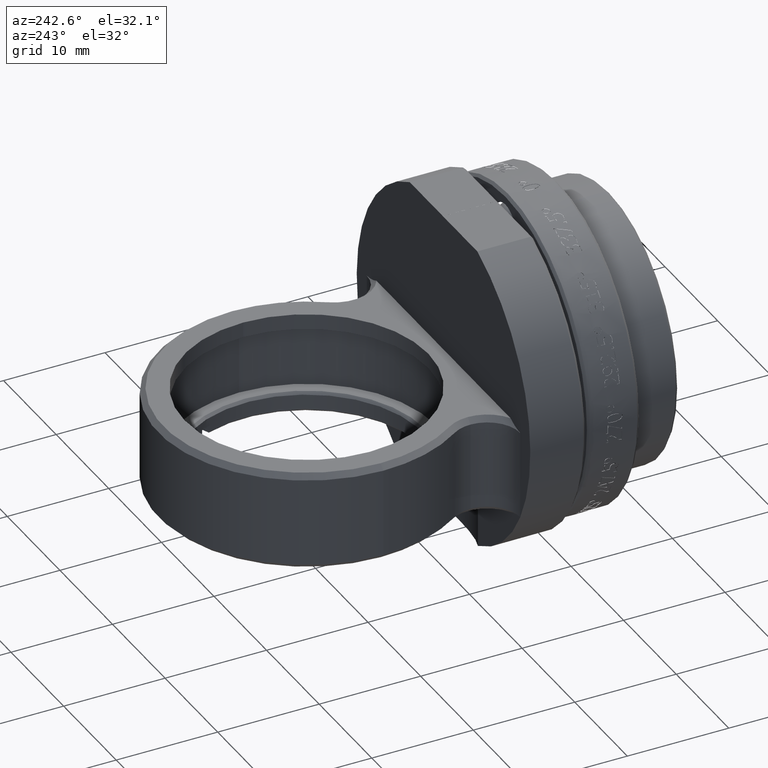
[diagram: clean part render]
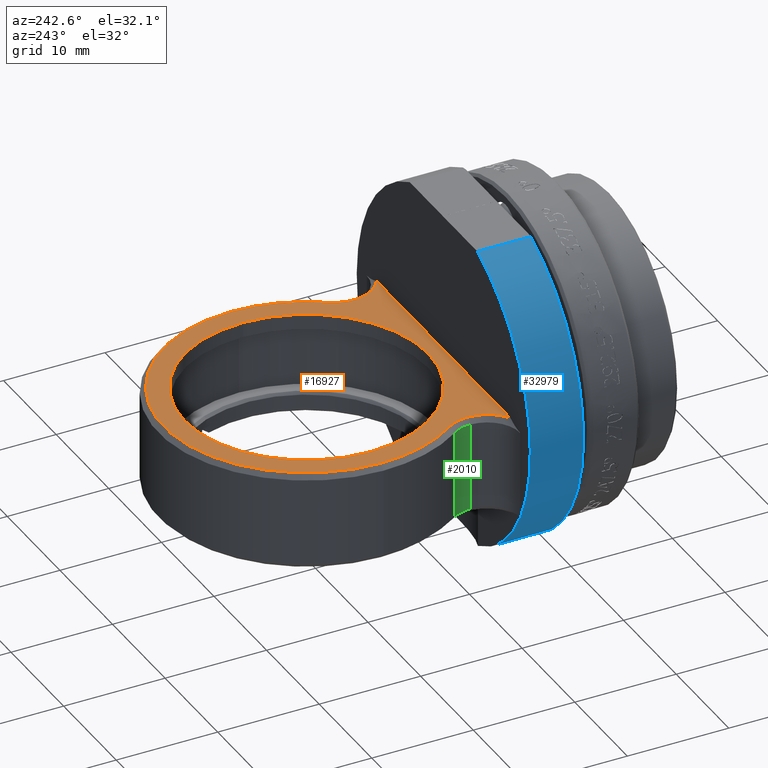
[diagram: same view with three faces highlighted in distinct colors, each labeled with its STEP entity id]
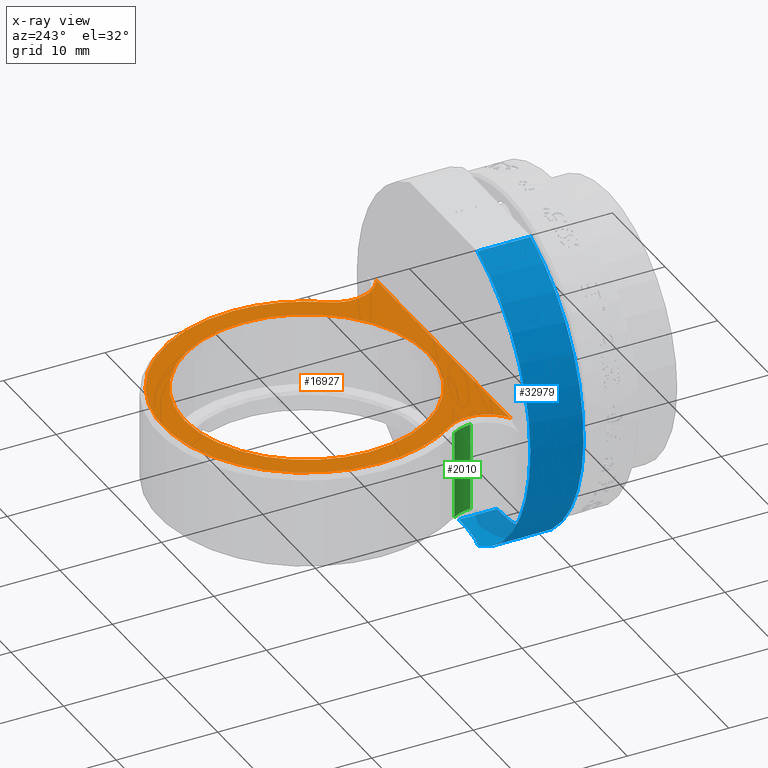
[diagram: x-ray of the same camera — body ghosted, the three highlighted faces saturated]
A machine part, auxiliary view with three faces highlighted in distinct colors.
The next image is the same camera in x-ray (body ghosted, the three faces saturated) — at least one of them is partly hidden behind the body in this view.
Their STEP definitions:

[orange] entity #16927 — the highlighted planar face has unit normal (0, 0, -1).
#651 = DIRECTION ( 'NONE',  ( -1.000000000000000000, 0.000000000000000000, 0.000000000000000000 ) ) ;
#1013 = CIRCLE ( 'NONE', #7799, 14.10000000000000142 ) ;
#1031 = EDGE_CURVE ( 'NONE', #15517, #8872, #47761, .T. ) ;
#1203 = CARTESIAN_POINT ( 'NONE',  ( -14.60000000000010445, 0.6241143853352292270, 1.499999999999850342 ) ) ;
#1524 = EDGE_CURVE ( 'NONE', #2351, #33673, #7036, .T. ) ;
#2351 = VERTEX_POINT ( 'NONE', #21173 ) ;
#2473 = PLANE ( 'NONE',  #35045 ) ;
#2997 = FACE_OUTER_BOUND ( 'NONE', #36812, .T. ) ;
#3442 = CIRCLE ( 'NONE', #37344, 3.742152537547152935 ) ;
#3496 = ORIENTED_EDGE ( 'NONE', *, *, #7613, .F. ) ;
#3506 = CARTESIAN_POINT ( 'NONE',  ( 12.73126980611230863, -2.618038152211925151, 1.499999999999848344 ) ) ;
#3992 = CARTESIAN_POINT ( 'NONE',  ( -1.041432260998257894E-13, 10.87996184778807063, 1.499999999999850342 ) ) ;
#4971 = LINE ( 'NONE', #41067, #44952 ) ;
#5699 = CIRCLE ( 'NONE', #52393, 12.00000000000000178 ) ;
#6666 = DIRECTION ( 'NONE',  ( -0.000000000000000000, -0.000000000000000000, 1.000000000000000000 ) ) ;
#7036 = CIRCLE ( 'NONE', #25998, 3.742152537547152935 ) ;
#7613 = EDGE_CURVE ( 'NONE', #44870, #48176, #14270, .T. ) ;
#7799 = AXIS2_PLACEMENT_3D ( 'NONE', #20064, #48212, #21354 ) ;
#8872 = VERTEX_POINT ( 'NONE', #19913 ) ;
#8996 = EDGE_CURVE ( 'NONE', #16036, #18588, #28646, .T. ) ;
#9658 = ORIENTED_EDGE ( 'NONE', *, *, #1031, .T. ) ;
#10643 = CARTESIAN_POINT ( 'NONE',  ( -1.041432260998257894E-13, 10.87996184778807063, 1.499999999999851674 ) ) ;
#12560 = EDGE_CURVE ( 'NONE', #8872, #16036, #1013, .T. ) ;
#12949 = CARTESIAN_POINT ( 'NONE',  ( 14.09999999999989662, 10.87996184778807240, 1.499999999999850342 ) ) ;
#14270 = CIRCLE ( 'NONE', #22739, 12.00000000000000178 ) ;
#15067 = AXIS2_PLACEMENT_3D ( 'NONE', #3992, #16181, #32137 ) ;
#15070 = AXIS2_PLACEMENT_3D ( 'NONE', #47885, #52412, #35952 ) ;
#15517 = VERTEX_POINT ( 'NONE', #3506 ) ;
#16036 = VERTEX_POINT ( 'NONE', #12949 ) ;
#16181 = DIRECTION ( 'NONE',  ( -0.000000000000000000, -0.000000000000000000, 1.000000000000000000 ) ) ;
#16755 = CIRCLE ( 'NONE', #15070, 14.10000000000000142 ) ;
#16927 = ADVANCED_FACE ( 'NONE', ( #26363, #2997 ), #2473, .F. ) ;
#17447 = EDGE_CURVE ( 'NONE', #50391, #2351, #3442, .T. ) ;
#18588 = VERTEX_POINT ( 'NONE', #24861 ) ;
#18632 = CARTESIAN_POINT ( 'NONE',  ( -1.041432260998257894E-13, 10.87996184778807063, 1.499999999999850342 ) ) ;
#19747 = EDGE_CURVE ( 'NONE', #33673, #15517, #4971, .T. ) ;
#19913 = CARTESIAN_POINT ( 'NONE',  ( 11.53784553555322923, 2.775141035597830985, 1.499999999999850342 ) ) ;
#20064 = CARTESIAN_POINT ( 'NONE',  ( -1.041432260998257894E-13, 10.87996184778807063, 1.499999999999850342 ) ) ;
#20799 = DIRECTION ( 'NONE',  ( -1.000000000000000000, 0.000000000000000000, 0.000000000000000000 ) ) ;
#21173 = CARTESIAN_POINT ( 'NONE',  ( -10.85784746245295196, 0.6241143853352292270, 1.499999999999850342 ) ) ;
#21354 = DIRECTION ( 'NONE',  ( -1.000000000000000000, 0.000000000000000000, 0.000000000000000000 ) ) ;
#22639 = ORIENTED_EDGE ( 'NONE', *, *, #12560, .T. ) ;
#22739 = AXIS2_PLACEMENT_3D ( 'NONE', #29573, #30079, #651 ) ;
#24313 = ORIENTED_EDGE ( 'NONE', *, *, #25833, .F. ) ;
#24861 = CARTESIAN_POINT ( 'NONE',  ( -14.10000000000010623, 10.87996184778807063, 1.499999999999850342 ) ) ;
#25833 = EDGE_CURVE ( 'NONE', #48176, #44870, #5699, .T. ) ;
#25878 = DIRECTION ( 'NONE',  ( -1.000000000000000000, 0.000000000000000000, 0.000000000000000000 ) ) ;
#25998 = AXIS2_PLACEMENT_3D ( 'NONE', #1203, #26140, #25878 ) ;
#26140 = DIRECTION ( 'NONE',  ( 0.000000000000000000, 0.000000000000000000, -1.000000000000000000 ) ) ;
#26363 = FACE_BOUND ( 'NONE', #38813, .T. ) ;
#28646 = CIRCLE ( 'NONE', #15067, 14.10000000000000142 ) ;
#29573 = CARTESIAN_POINT ( 'NONE',  ( -1.041432260998257894E-13, 10.87996184778807063, 1.499999999999851674 ) ) ;
#30079 = DIRECTION ( 'NONE',  ( -0.000000000000000000, -0.000000000000000000, 1.000000000000000000 ) ) ;
#30538 = DIRECTION ( 'NONE',  ( 0.000000000000000000, 0.000000000000000000, -1.000000000000000000 ) ) ;
#31081 = CARTESIAN_POINT ( 'NONE',  ( -11.53784553555343884, 2.775141035597831429, 1.499999999999850342 ) ) ;
#31136 = DIRECTION ( 'NONE',  ( 0.000000000000000000, 0.000000000000000000, -1.000000000000000000 ) ) ;
#32137 = DIRECTION ( 'NONE',  ( -1.000000000000000000, 0.000000000000000000, 0.000000000000000000 ) ) ;
#32771 = CARTESIAN_POINT ( 'NONE',  ( -14.60000000000010445, 0.6241143853352292270, 1.499999999999850342 ) ) ;
#33214 = ORIENTED_EDGE ( 'NONE', *, *, #17447, .T. ) ;
#33673 = VERTEX_POINT ( 'NONE', #35444 ) ;
#34874 = DIRECTION ( 'NONE',  ( -1.000000000000000000, 0.000000000000000000, -0.000000000000000000 ) ) ;
#35045 = AXIS2_PLACEMENT_3D ( 'NONE', #18632, #31136, #34874 ) ;
#35444 = CARTESIAN_POINT ( 'NONE',  ( -12.73126980611251291, -2.618038152211925151, 1.499999999999848344 ) ) ;
#35952 = DIRECTION ( 'NONE',  ( -1.000000000000000000, 0.000000000000000000, 0.000000000000000000 ) ) ;
#36242 = DIRECTION ( 'NONE',  ( 0.000000000000000000, 0.000000000000000000, -1.000000000000000000 ) ) ;
#36738 = AXIS2_PLACEMENT_3D ( 'NONE', #43533, #30538, #46736 ) ;
#36812 = EDGE_LOOP ( 'NONE', ( #22639, #47035, #52531, #33214, #43140, #41886, #9658 ) ) ;
#37095 = DIRECTION ( 'NONE',  ( 1.000000000000000000, 0.000000000000000000, 0.000000000000000000 ) ) ;
#37344 = AXIS2_PLACEMENT_3D ( 'NONE', #32771, #36242, #20799 ) ;
#38813 = EDGE_LOOP ( 'NONE', ( #24313, #3496 ) ) ;
#39074 = DIRECTION ( 'NONE',  ( -1.000000000000000000, 0.000000000000000000, 0.000000000000000000 ) ) ;
#41067 = CARTESIAN_POINT ( 'NONE',  ( -16.50000000000011013, -2.618038152211925151, 1.499999999999848344 ) ) ;
#41886 = ORIENTED_EDGE ( 'NONE', *, *, #19747, .T. ) ;
#43140 = ORIENTED_EDGE ( 'NONE', *, *, #1524, .T. ) ;
#43533 = CARTESIAN_POINT ( 'NONE',  ( 14.59999999999989662, 0.6241143853352292270, 1.499999999999850342 ) ) ;
#43842 = CARTESIAN_POINT ( 'NONE',  ( -12.00000000000010658, 10.87996184778807240, 1.499999999999851674 ) ) ;
#44501 = EDGE_CURVE ( 'NONE', #18588, #50391, #16755, .T. ) ;
#44870 = VERTEX_POINT ( 'NONE', #43842 ) ;
#44952 = VECTOR ( 'NONE', #37095, 1000.000000000000000 ) ;
#46736 = DIRECTION ( 'NONE',  ( -1.000000000000000000, 0.000000000000000000, 0.000000000000000000 ) ) ;
#47035 = ORIENTED_EDGE ( 'NONE', *, *, #8996, .T. ) ;
#47761 = CIRCLE ( 'NONE', #36738, 3.742152537547152935 ) ;
#47885 = CARTESIAN_POINT ( 'NONE',  ( -1.041432260998257894E-13, 10.87996184778807063, 1.499999999999850342 ) ) ;
#48176 = VERTEX_POINT ( 'NONE', #50289 ) ;
#48212 = DIRECTION ( 'NONE',  ( -0.000000000000000000, -0.000000000000000000, 1.000000000000000000 ) ) ;
#50289 = CARTESIAN_POINT ( 'NONE',  ( 11.99999999999989875, 10.87996184778807063, 1.499999999999851674 ) ) ;
#50391 = VERTEX_POINT ( 'NONE', #31081 ) ;
#52393 = AXIS2_PLACEMENT_3D ( 'NONE', #10643, #6666, #39074 ) ;
#52412 = DIRECTION ( 'NONE',  ( -0.000000000000000000, -0.000000000000000000, 1.000000000000000000 ) ) ;
#52531 = ORIENTED_EDGE ( 'NONE', *, *, #44501, .T. ) ;

[blue] entity #32979 — the highlighted cylindrical surface (partial cylindrical patch) has radius 16.5 mm, axis along (-0, -1, -0).
#798 = B_SPLINE_CURVE_WITH_KNOTS ( 'NONE', 3,
 ( #25223, #20970, #49148, #5056, #24706, #13528, #25477, #28707, #41679, #5309, #37700, #4540 ),
 .UNSPECIFIED., .F., .F.,
 ( 4, 2, 2, 2, 2, 4 ),
 ( 0.02086665204749870578, 0.02257859580687402237, 0.02429053956624933897, 0.02514651144593699206, 0.02600248332562465209, 0.02771442708499996521 ),
 .UNSPECIFIED. ) ;
#3934 = VERTEX_POINT ( 'NONE', #27616 ) ;
#4271 = CARTESIAN_POINT ( 'NONE',  ( -1.041432260998257894E-13, -7.868038152211924263, -1.461209736246752044E-13 ) ) ;
#4540 = CARTESIAN_POINT ( 'NONE',  ( -6.542476289601781403, -2.618038152211924263, -15.14747516914962233 ) ) ;
#4807 = ORIENTED_EDGE ( 'NONE', *, *, #21918, .T. ) ;
#5045 = CIRCLE ( 'NONE', #44092, 16.50000000000000355 ) ;
#5056 = CARTESIAN_POINT ( 'NONE',  ( -2.304973287544287874, -3.953026980806843671, -16.34829601624507234 ) ) ;
#5261 = VERTEX_POINT ( 'NONE', #48116 ) ;
#5309 = CARTESIAN_POINT ( 'NONE',  ( -5.555748422547190479, -3.064289650830107181, -15.54623765571998106 ) ) ;
#5485 = DIRECTION ( 'NONE',  ( 0.000000000000000000, 0.000000000000000000, -1.000000000000000000 ) ) ;
#5915 = AXIS2_PLACEMENT_3D ( 'NONE', #4271, #20444, #36657 ) ;
#6013 = CARTESIAN_POINT ( 'NONE',  ( -14.59771744050946296, -2.618038152211925595, -7.691337304516830287 ) ) ;
#6291 = DIRECTION ( 'NONE',  ( -0.000000000000000000, -1.000000000000000000, -0.000000000000000000 ) ) ;
#8911 = ORIENTED_EDGE ( 'NONE', *, *, #11405, .F. ) ;
#10516 = CARTESIAN_POINT ( 'NONE',  ( -14.59543316245880185, -2.618035741743203637, -7.695671172553910644 ) ) ;
#10991 = CIRCLE ( 'NONE', #5915, 16.50000000000000355 ) ;
#11152 = AXIS2_PLACEMENT_3D ( 'NONE', #33971, #50161, #13775 ) ;
#11405 = EDGE_CURVE ( 'NONE', #3934, #25669, #51789, .T. ) ;
#11958 = VERTEX_POINT ( 'NONE', #52408 ) ;
#12322 = VERTEX_POINT ( 'NONE', #37367 ) ;
#13178 = EDGE_CURVE ( 'NONE', #25328, #22705, #798, .T. ) ;
#13528 = CARTESIAN_POINT ( 'NONE',  ( -3.690512407587978938, -3.661699908621767641, -16.08443895140510094 ) ) ;
#13775 = DIRECTION ( 'NONE',  ( 0.000000000000000000, 0.000000000000000000, -1.000000000000000000 ) ) ;
#14242 = CARTESIAN_POINT ( 'NONE',  ( -14.59314716581531179, -2.618034533073862136, -7.700003623170911027 ) ) ;
#14259 = CARTESIAN_POINT ( 'NONE',  ( -1.041432260998257894E-13, -0.01903815221192088625, -16.50000000000014921 ) ) ;
#14500 = CARTESIAN_POINT ( 'NONE',  ( -14.60000000000010445, -2.618038152211925151, -7.687002016391200954 ) ) ;
#15020 = EDGE_LOOP ( 'NONE', ( #51056, #4807, #17467, #8911, #43984, #51117, #25457 ) ) ;
#15390 = AXIS2_PLACEMENT_3D ( 'NONE', #22191, #21662, #33890 ) ;
#17058 = CIRCLE ( 'NONE', #11152, 16.50000000000000355 ) ;
#17431 = LINE ( 'NONE', #14259, #39804 ) ;
#17467 = ORIENTED_EDGE ( 'NONE', *, *, #20678, .T. ) ;
#17668 = CYLINDRICAL_SURFACE ( 'NONE', #15390, 16.50000000000000355 ) ;
#18189 = FACE_OUTER_BOUND ( 'NONE', #15020, .T. ) ;
#19042 = CARTESIAN_POINT ( 'NONE',  ( -1.041432260997785587E-13, -4.120038152211929372, -16.50000000000014921 ) ) ;
#20444 = DIRECTION ( 'NONE',  ( 0.000000000000000000, 1.000000000000000000, 0.000000000000000000 ) ) ;
#20642 = EDGE_CURVE ( 'NONE', #22705, #12322, #5045, .T. ) ;
#20678 = EDGE_CURVE ( 'NONE', #5261, #25669, #10991, .T. ) ;
#20970 = CARTESIAN_POINT ( 'NONE',  ( -0.5768911971940541283, -4.120038152211927596, -16.50000000000014921 ) ) ;
#21662 = DIRECTION ( 'NONE',  ( -0.000000000000000000, -1.000000000000000000, -0.000000000000000000 ) ) ;
#21918 = EDGE_CURVE ( 'NONE', #25328, #5261, #17431, .T. ) ;
#22112 = VECTOR ( 'NONE', #47525, 1000.000000000000000 ) ;
#22191 = CARTESIAN_POINT ( 'NONE',  ( -1.041432260998257894E-13, -0.01903815221192088625, -1.461209736246752044E-13 ) ) ;
#22705 = VERTEX_POINT ( 'NONE', #43498 ) ;
#22901 = EDGE_CURVE ( 'NONE', #11958, #12322, #36200, .T. ) ;
#24706 = CARTESIAN_POINT ( 'NONE',  ( -2.865262696994372416, -3.854674338788894872, -16.25904371497134093 ) ) ;
#25223 = CARTESIAN_POINT ( 'NONE',  ( -1.041432260997785587E-13, -4.120038152211929372, -16.50000000000014921 ) ) ;
#25328 = VERTEX_POINT ( 'NONE', #19042 ) ;
#25457 = ORIENTED_EDGE ( 'NONE', *, *, #20642, .F. ) ;
#25477 = CARTESIAN_POINT ( 'NONE',  ( -3.963058121973289438, -3.589779156952343619, -16.01943296153421059 ) ) ;
#25669 = VERTEX_POINT ( 'NONE', #29531 ) ;
#27616 = CARTESIAN_POINT ( 'NONE',  ( -6.419501538281731534, -2.618038152211925151, 15.19999999999985185 ) ) ;
#28707 = CARTESIAN_POINT ( 'NONE',  ( -4.503147510322911273, -3.430904545364974023, -15.87607396642821556 ) ) ;
#29531 = CARTESIAN_POINT ( 'NONE',  ( -6.419501538281739528, -7.868038152211924263, 15.19999999999984830 ) ) ;
#29908 = CARTESIAN_POINT ( 'NONE',  ( -1.041432260998257894E-13, -2.618038152211924707, -1.461209736246752044E-13 ) ) ;
#32979 = ADVANCED_FACE ( 'NONE', ( #18189 ), #17668, .T. ) ;
#33890 = DIRECTION ( 'NONE',  ( 0.000000000000000000, 0.000000000000000000, -1.000000000000000000 ) ) ;
#33971 = CARTESIAN_POINT ( 'NONE',  ( -1.041432260998257894E-13, -2.618038152211925151, -1.461209736246752044E-13 ) ) ;
#36200 = B_SPLINE_CURVE_WITH_KNOTS ( 'NONE', 3,
 ( #14500, #6013, #10516, #14242 ),
 .UNSPECIFIED., .F., .F.,
 ( 4, 4 ),
 ( 0.000000000000000000, 1.455266087546860666E-05 ),
 .UNSPECIFIED. ) ;
#36657 = DIRECTION ( 'NONE',  ( 0.000000000000000000, 0.000000000000000000, -1.000000000000000000 ) ) ;
#37367 = CARTESIAN_POINT ( 'NONE',  ( -14.59314716581531179, -2.618034533073862136, -7.700003623170911027 ) ) ;
#37700 = CARTESIAN_POINT ( 'NONE',  ( -6.058365218407841368, -2.852686633825497253, -15.35657174593561791 ) ) ;
#39804 = VECTOR ( 'NONE', #6291, 1000.000000000000000 ) ;
#41679 = CARTESIAN_POINT ( 'NONE',  ( -4.770908145341602236, -3.343805517665835225, -15.79759149093328752 ) ) ;
#43498 = CARTESIAN_POINT ( 'NONE',  ( -6.542476289601781403, -2.618038152211924263, -15.14747516914962233 ) ) ;
#43984 = ORIENTED_EDGE ( 'NONE', *, *, #52012, .F. ) ;
#44092 = AXIS2_PLACEMENT_3D ( 'NONE', #29908, #46111, #5485 ) ;
#46111 = DIRECTION ( 'NONE',  ( -0.000000000000000000, 1.000000000000000000, -0.000000000000000000 ) ) ;
#47525 = DIRECTION ( 'NONE',  ( -0.000000000000000000, -1.000000000000000000, -0.000000000000000000 ) ) ;
#48116 = CARTESIAN_POINT ( 'NONE',  ( -1.041432260998257894E-13, -7.868038152211924263, -16.50000000000014921 ) ) ;
#49148 = CARTESIAN_POINT ( 'NONE',  ( -1.162968831538138570, -4.085931474776566930, -16.46897653128262817 ) ) ;
#50161 = DIRECTION ( 'NONE',  ( -0.000000000000000000, 1.000000000000000000, -0.000000000000000000 ) ) ;
#51056 = ORIENTED_EDGE ( 'NONE', *, *, #13178, .F. ) ;
#51117 = ORIENTED_EDGE ( 'NONE', *, *, #22901, .T. ) ;
#51789 = LINE ( 'NONE', #52055, #22112 ) ;
#52012 = EDGE_CURVE ( 'NONE', #11958, #3934, #17058, .T. ) ;
#52055 = CARTESIAN_POINT ( 'NONE',  ( -6.419501538281739528, -0.01903815221192088625, 15.19999999999984830 ) ) ;
#52408 = CARTESIAN_POINT ( 'NONE',  ( -14.60000000000010445, -2.618038152211925151, -7.687002016391200954 ) ) ;

[green] entity #2010 — the highlighted cylindrical surface (partial cylindrical patch) has radius 3.2422 mm, axis along (-0, -0, 1).
#2010 = ADVANCED_FACE ( 'NONE', ( #6694 ), #22865, .F. ) ;
#2324 = EDGE_CURVE ( 'NONE', #50170, #5542, #40422, .T. ) ;
#4909 = ORIENTED_EDGE ( 'NONE', *, *, #52305, .T. ) ;
#5004 = VECTOR ( 'NONE', #49387, 1000.000000000000000 ) ;
#5542 = VERTEX_POINT ( 'NONE', #18564 ) ;
#6694 = FACE_OUTER_BOUND ( 'NONE', #25747, .T. ) ;
#8452 = DIRECTION ( 'NONE',  ( -1.000000000000000000, 0.000000000000000000, 0.000000000000000000 ) ) ;
#9893 = AXIS2_PLACEMENT_3D ( 'NONE', #41368, #33159, #8452 ) ;
#11094 = CARTESIAN_POINT ( 'NONE',  ( -11.94698899426100169, 2.487736042257752800, -7.700000000000144063 ) ) ;
#12079 = EDGE_CURVE ( 'NONE', #29561, #5542, #45727, .T. ) ;
#12313 = CARTESIAN_POINT ( 'NONE',  ( -11.35784746245295018, 0.6241143853352292270, -7.700000000000135181 ) ) ;
#12853 = CIRCLE ( 'NONE', #34906, 3.242152537547156044 ) ;
#14950 = VECTOR ( 'NONE', #29014, 1000.000000000000000 ) ;
#17940 = ORIENTED_EDGE ( 'NONE', *, *, #12079, .F. ) ;
#18564 = CARTESIAN_POINT ( 'NONE',  ( -11.94698899426100169, 2.487736042257752800, 0.9999999999998512301 ) ) ;
#20694 = CARTESIAN_POINT ( 'NONE',  ( -11.35784746245295018, 0.6241143853352292270, -16.50100000000015044 ) ) ;
#20911 = ORIENTED_EDGE ( 'NONE', *, *, #2324, .T. ) ;
#21285 = CARTESIAN_POINT ( 'NONE',  ( -11.94698899426100169, 2.487736042257752800, -16.50100000000015044 ) ) ;
#22435 = EDGE_CURVE ( 'NONE', #41978, #50170, #48856, .T. ) ;
#22865 = CYLINDRICAL_SURFACE ( 'NONE', #28557, 3.242152537547154267 ) ;
#25747 = EDGE_LOOP ( 'NONE', ( #4909, #45888, #20911, #17940 ) ) ;
#28557 = AXIS2_PLACEMENT_3D ( 'NONE', #39101, #30595, #46792 ) ;
#29014 = DIRECTION ( 'NONE',  ( -0.000000000000000000, -0.000000000000000000, 1.000000000000000000 ) ) ;
#29561 = VERTEX_POINT ( 'NONE', #11094 ) ;
#30595 = DIRECTION ( 'NONE',  ( -0.000000000000000000, -0.000000000000000000, 1.000000000000000000 ) ) ;
#33159 = DIRECTION ( 'NONE',  ( 0.000000000000000000, 0.000000000000000000, 1.000000000000000000 ) ) ;
#33392 = DIRECTION ( 'NONE',  ( -0.000000000000000000, -0.000000000000000000, -1.000000000000000000 ) ) ;
#34906 = AXIS2_PLACEMENT_3D ( 'NONE', #36848, #33392, #40833 ) ;
#36848 = CARTESIAN_POINT ( 'NONE',  ( -14.60000000000010445, 0.6241143853352292270, -7.700000000000135181 ) ) ;
#39101 = CARTESIAN_POINT ( 'NONE',  ( -14.60000000000010445, 0.6241143853352292270, -16.50100000000015044 ) ) ;
#40422 = CIRCLE ( 'NONE', #9893, 3.242152537547156044 ) ;
#40833 = DIRECTION ( 'NONE',  ( -1.000000000000000000, 0.000000000000000000, 0.000000000000000000 ) ) ;
#41368 = CARTESIAN_POINT ( 'NONE',  ( -14.60000000000010445, 0.6241143853352292270, 0.9999999999998512301 ) ) ;
#41978 = VERTEX_POINT ( 'NONE', #12313 ) ;
#45727 = LINE ( 'NONE', #21285, #14950 ) ;
#45888 = ORIENTED_EDGE ( 'NONE', *, *, #22435, .T. ) ;
#46792 = DIRECTION ( 'NONE',  ( 1.000000000000000000, 0.000000000000000000, 0.000000000000000000 ) ) ;
#48856 = LINE ( 'NONE', #20694, #5004 ) ;
#49387 = DIRECTION ( 'NONE',  ( -0.000000000000000000, -0.000000000000000000, 1.000000000000000000 ) ) ;
#50170 = VERTEX_POINT ( 'NONE', #51119 ) ;
#51119 = CARTESIAN_POINT ( 'NONE',  ( -11.35784746245294841, 0.6241143853352292270, 0.9999999999998512301 ) ) ;
#52305 = EDGE_CURVE ( 'NONE', #29561, #41978, #12853, .T. ) ;